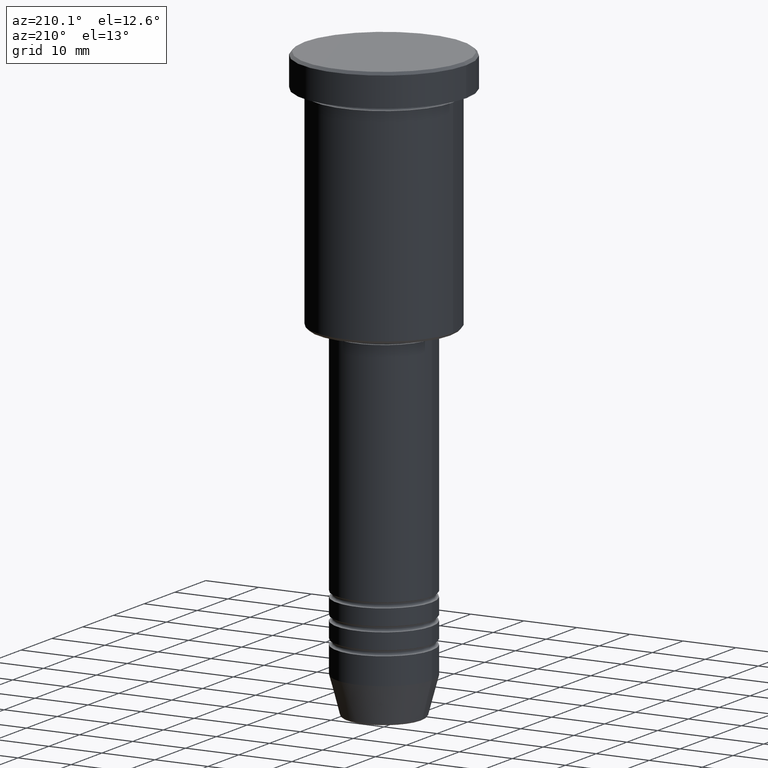
[diagram: clean part render]
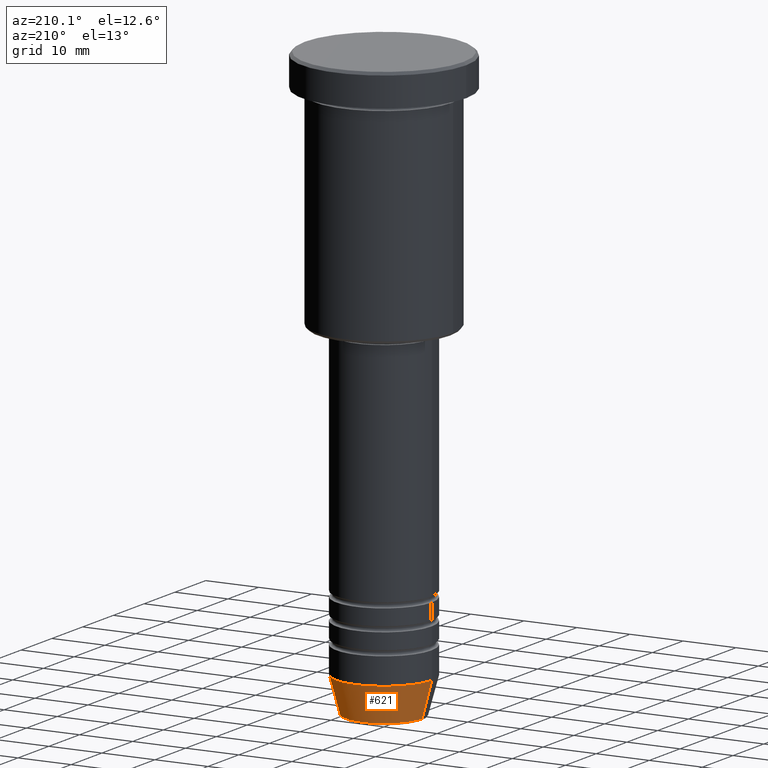
[diagram: same view with one face highlighted and labeled with its STEP entity id]
A machine part, auxiliary view. The second image highlights one B-rep face of the part: STEP entity #621.
In plain terms, the highlighted conical surface has half-angle 15 deg.
Its self-contained STEP definition (entity closure, byte-faithful):
#101 = CARTESIAN_POINT ( 'NONE',  ( 9.000000000000000000, 0.000000000000000000, -104.0000000000000142 ) ) ;
#116 = EDGE_LOOP ( 'NONE', ( #879, #1063, #1123, #504 ) ) ;
#155 = LINE ( 'NONE', #874, #456 ) ;
#162 = DIRECTION ( 'NONE',  ( 1.000000000000000000, 0.000000000000000000, 0.000000000000000000 ) ) ;
#213 = DIRECTION ( 'NONE',  ( -0.000000000000000000, -0.000000000000000000, 1.000000000000000000 ) ) ;
#240 = EDGE_CURVE ( 'NONE', #775, #1011, #155, .T. ) ;
#242 = CONICAL_SURFACE ( 'NONE', #677, 9.000000000000000000, 0.2617993877991500740 ) ;
#353 = DIRECTION ( 'NONE',  ( -0.2588190451025213501, 3.169619151431772337E-17, 0.9659258262890680902 ) ) ;
#360 = CARTESIAN_POINT ( 'NONE',  ( 0.000000000000000000, 0.000000000000000000, -110.6294095225512848 ) ) ;
#364 = VECTOR ( 'NONE', #353, 1000.000000000000000 ) ;
#369 = CARTESIAN_POINT ( 'NONE',  ( 7.223655072137188604, 0.000000000000000000, -110.6294095225512848 ) ) ;
#371 = DIRECTION ( 'NONE',  ( 1.000000000000000000, 0.000000000000000000, 0.000000000000000000 ) ) ;
#384 = CARTESIAN_POINT ( 'NONE',  ( -7.223655072137189492, 9.934123627281765110E-16, -110.6294095225512848 ) ) ;
#398 = CIRCLE ( 'NONE', #1058, 9.000000000000000000 ) ;
#423 = EDGE_CURVE ( 'NONE', #1011, #1050, #398, .T. ) ;
#456 = VECTOR ( 'NONE', #1128, 1000.000000000000000 ) ;
#480 = FACE_OUTER_BOUND ( 'NONE', #116, .T. ) ;
#491 = EDGE_CURVE ( 'NONE', #606, #1050, #1162, .T. ) ;
#504 = ORIENTED_EDGE ( 'NONE', *, *, #240, .F. ) ;
#533 = AXIS2_PLACEMENT_3D ( 'NONE', #360, #714, #162 ) ;
#543 = DIRECTION ( 'NONE',  ( -0.000000000000000000, -0.000000000000000000, 1.000000000000000000 ) ) ;
#547 = CIRCLE ( 'NONE', #533, 7.223655072137188604 ) ;
#569 = DIRECTION ( 'NONE',  ( 1.000000000000000000, 0.000000000000000000, 0.000000000000000000 ) ) ;
#600 = CARTESIAN_POINT ( 'NONE',  ( -9.000000000000000000, 1.102182119232617714E-15, -104.0000000000000142 ) ) ;
#606 = VERTEX_POINT ( 'NONE', #384 ) ;
#621 = ADVANCED_FACE ( 'NONE', ( #480 ), #242, .T. ) ;
#677 = AXIS2_PLACEMENT_3D ( 'NONE', #919, #213, #569 ) ;
#714 = DIRECTION ( 'NONE',  ( -0.000000000000000000, -0.000000000000000000, 1.000000000000000000 ) ) ;
#775 = VERTEX_POINT ( 'NONE', #369 ) ;
#787 = EDGE_CURVE ( 'NONE', #775, #606, #547, .T. ) ;
#874 = CARTESIAN_POINT ( 'NONE',  ( 9.000000000000000000, 0.000000000000000000, -104.0000000000000142 ) ) ;
#879 = ORIENTED_EDGE ( 'NONE', *, *, #787, .T. ) ;
#892 = CARTESIAN_POINT ( 'NONE',  ( -9.000000000000000000, 1.102182119232617714E-15, -104.0000000000000142 ) ) ;
#919 = CARTESIAN_POINT ( 'NONE',  ( 0.000000000000000000, 0.000000000000000000, -104.0000000000000142 ) ) ;
#980 = CARTESIAN_POINT ( 'NONE',  ( 0.000000000000000000, 0.000000000000000000, -104.0000000000000142 ) ) ;
#1011 = VERTEX_POINT ( 'NONE', #101 ) ;
#1050 = VERTEX_POINT ( 'NONE', #600 ) ;
#1058 = AXIS2_PLACEMENT_3D ( 'NONE', #980, #543, #371 ) ;
#1063 = ORIENTED_EDGE ( 'NONE', *, *, #491, .T. ) ;
#1123 = ORIENTED_EDGE ( 'NONE', *, *, #423, .F. ) ;
#1128 = DIRECTION ( 'NONE',  ( 0.2588190451025213501, 0.000000000000000000, 0.9659258262890680902 ) ) ;
#1162 = LINE ( 'NONE', #892, #364 ) ;